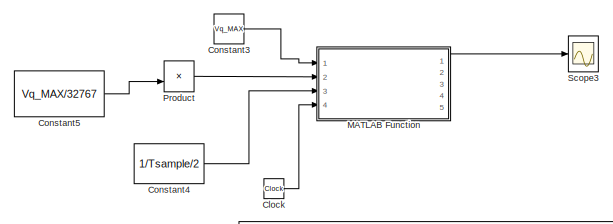
[diagram: root canvas - part 1/5, top left region]
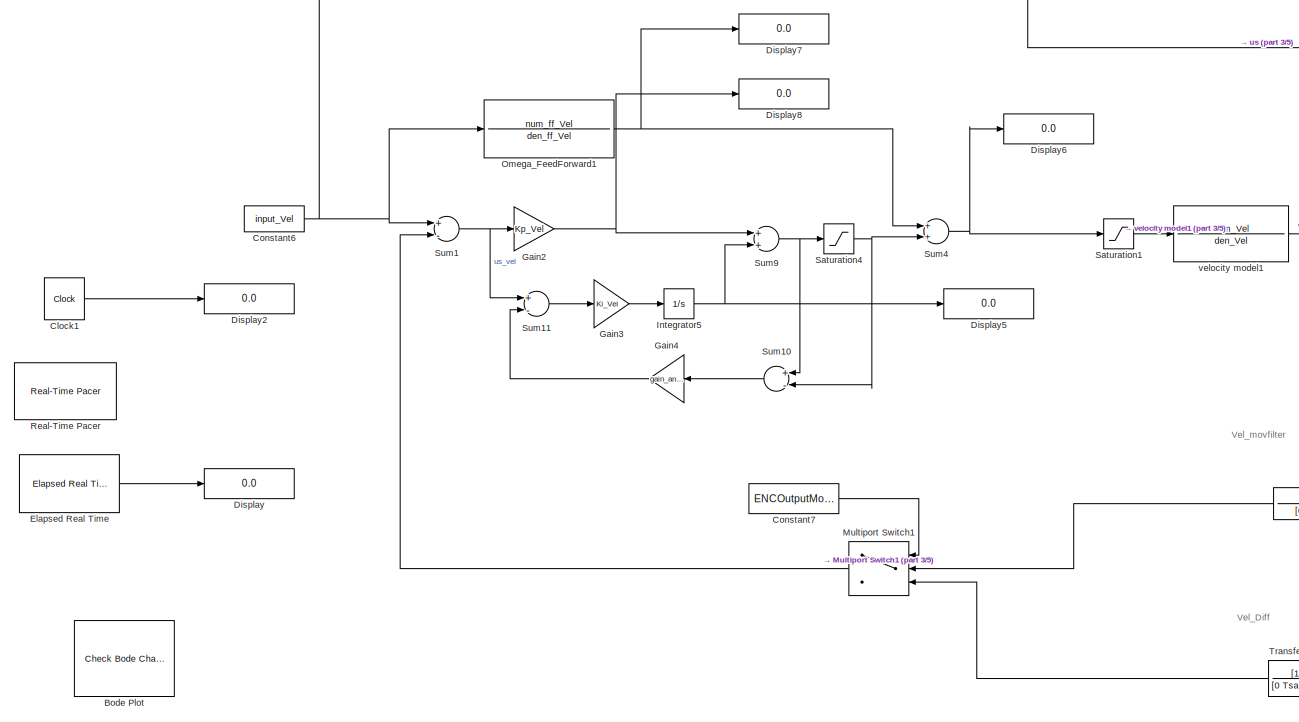
[diagram: root canvas - part 2/5, top left region]
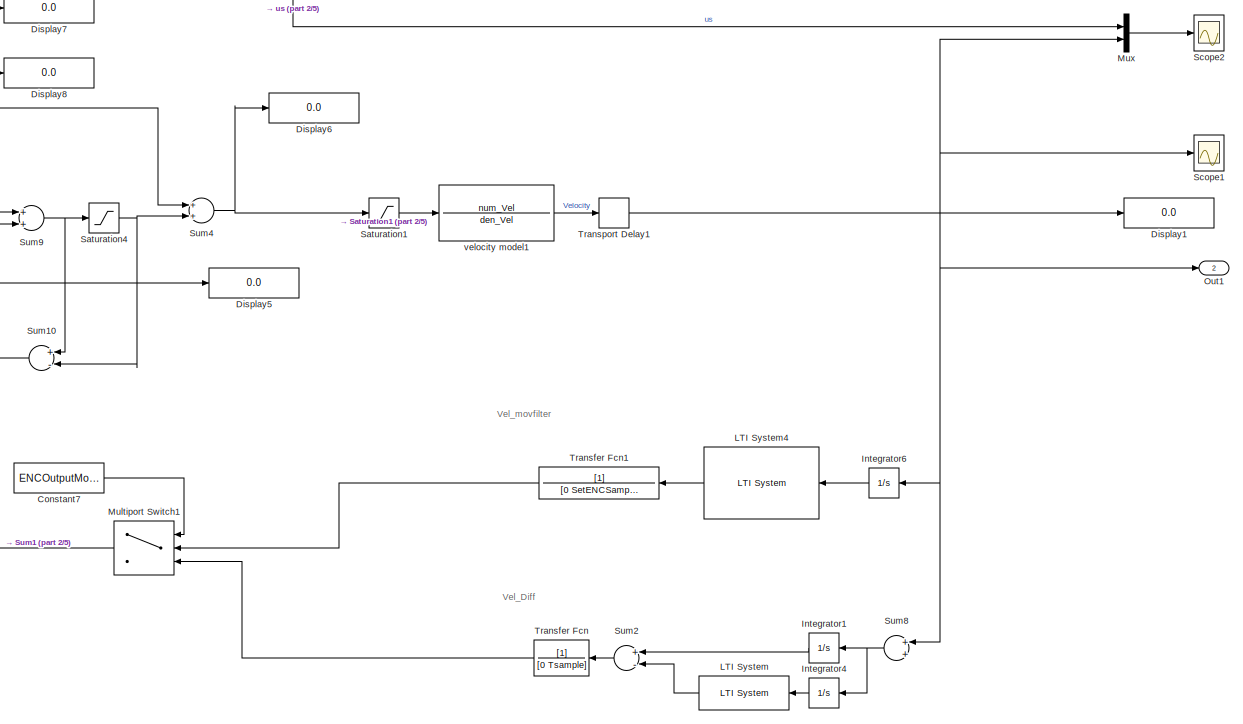
[diagram: root canvas - part 3/5, top right region]
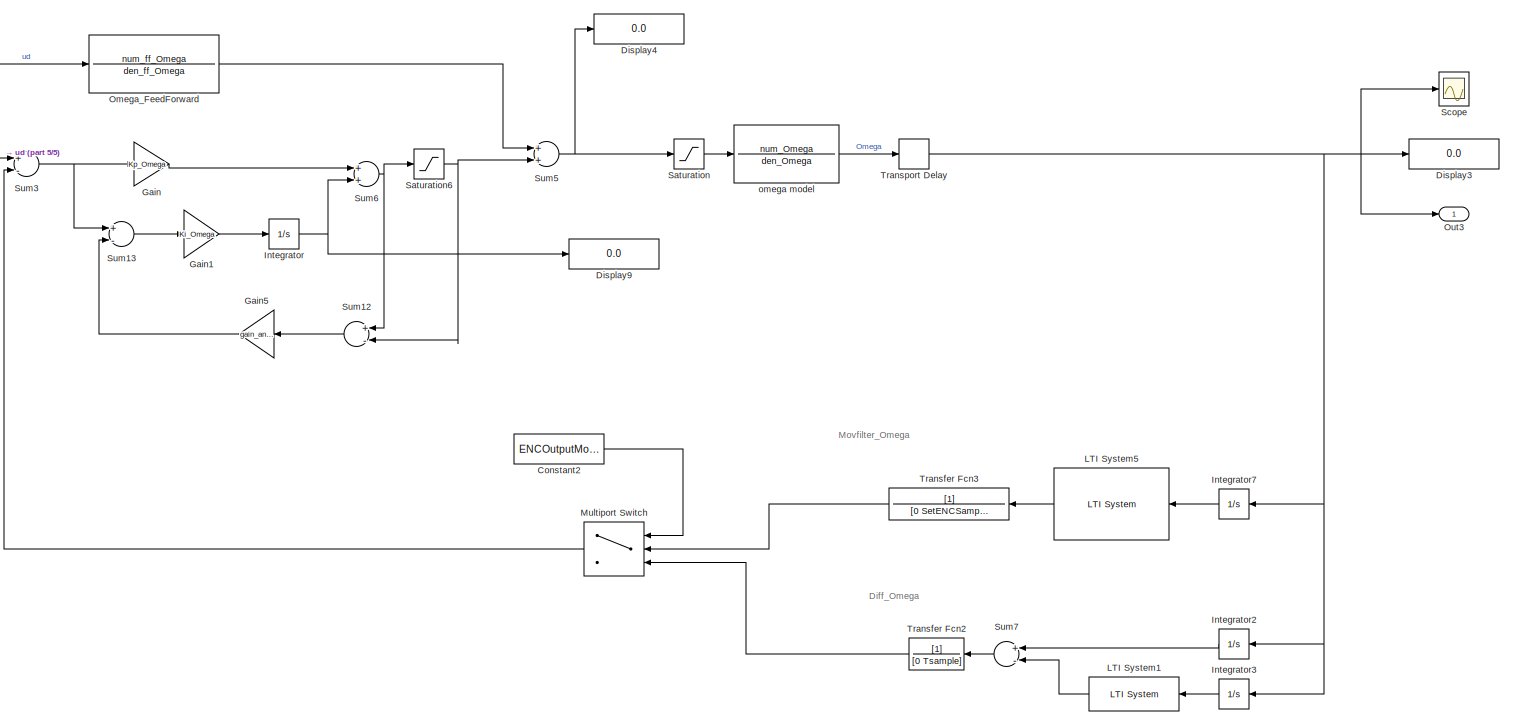
[diagram: root canvas - part 4/5, full width, bottom band]
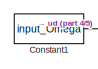
[diagram: root canvas - part 5/5, bottom left region]
MODEL slx_cc8e525f96bc
KIND model
CONFIG AbsTol = auto
CONFIG FixedStep = 0.04
CONFIG MaxStep = auto
CONFIG MinStep = auto
CONFIG RelTol = 1e-3
CONFIG SampleTimeConstraint = Unconstrained
CONFIG Solver = FixedStepAuto
CONFIG SolverMode = Auto
CONFIG SolverName = FixedStepAuto
CONFIG StartTime = 0.0
CONFIG StopTime = simulation_time
BLOCK [Reference] Bode Plot  REF=slctrlblks/Model Verification/Check Bode 
Characteristics
  InstantiateOnLoad = on
  Ports = []
  SourceBlock = slctrlblks/Model Verification/Check Bode \nCharacteristics
  SourceType = Checks_Bode
BLOCK [Clock] Clock
BLOCK [Clock] Clock1
  Decimation = 1
  DisplayTime = on
BLOCK [Constant] Constant1
  SampleTime = -1
  Value = input_Omega
BLOCK [Constant] Constant2
  SampleTime = -1
  Value = ENCOutputMode
BLOCK [Constant] Constant3
  SampleTime = -1
  Value = Vq_MAX
BLOCK [Constant] Constant4
  SampleTime = -1
  Value = 1/Tsample/2
BLOCK [Constant] Constant5
  SampleTime = -1
  Value = Vq_MAX/32767
BLOCK [Constant] Constant6
  SampleTime = -1
  Value = input_Vel
BLOCK [Constant] Constant7
  SampleTime = -1
  Value = ENCOutputMode
BLOCK [Display] Display
  Decimation = 1
  Ports = [1]
BLOCK [Display] Display1
  Decimation = 1
  Ports = [1]
BLOCK [Display] Display2
  Decimation = 1
  Ports = [1]
BLOCK [Display] Display3
  Decimation = 1
  Ports = [1]
BLOCK [Display] Display4
  Decimation = 1
  Ports = [1]
BLOCK [Display] Display5
  Decimation = 1
  Ports = [1]
BLOCK [Display] Display6
  Decimation = 1
  Ports = [1]
BLOCK [Display] Display7
  Decimation = 1
  Ports = [1]
BLOCK [Display] Display8
  Decimation = 1
  Ports = [1]
BLOCK [Display] Display9
  Decimation = 1
  Ports = [1]
BLOCK [Reference] Elapsed Real Time  REF=realtime_pacer_lib/Elapsed Real Time
  Ports = [0, 1]
  SourceBlock = realtime_pacer_lib/Elapsed Real Time
  SourceType = RealTime_Elapsed
BLOCK [Gain] Gain
  Gain = Kp_Omega
  OutDataTypeStr = Inherit: Inherit via internal rule
  ParamDataTypeStr = Inherit: Inherit via internal rule
  SaturateOnIntegerOverflow = off
BLOCK [Gain] Gain1
  Gain = Ki_Omega
  OutDataTypeStr = Inherit: Inherit via internal rule
  ParamDataTypeStr = Inherit: Inherit via internal rule
  SaturateOnIntegerOverflow = off
BLOCK [Gain] Gain2
  Gain = Kp_Vel
  OutDataTypeStr = Inherit: Inherit via internal rule
  ParamDataTypeStr = Inherit: Inherit via internal rule
  SaturateOnIntegerOverflow = off
BLOCK [Gain] Gain3
  Gain = Ki_Vel
  OutDataTypeStr = Inherit: Inherit via internal rule
  ParamDataTypeStr = Inherit: Inherit via internal rule
  SaturateOnIntegerOverflow = off
BLOCK [Gain] Gain4
  Gain = gain_anti_windup_Vel
  OutDataTypeStr = Inherit: Inherit via internal rule
  ParamDataTypeStr = Inherit: Inherit via internal rule
  SaturateOnIntegerOverflow = off
BLOCK [Gain] Gain5
  Gain = gain_anti_windup_Omega
  OutDataTypeStr = Inherit: Inherit via internal rule
  ParamDataTypeStr = Inherit: Inherit via internal rule
  SaturateOnIntegerOverflow = off
BLOCK [Integrator] Integrator
  Ports = [1, 1]
BLOCK [Integrator] Integrator1
  Ports = [1, 1]
BLOCK [Integrator] Integrator2
  Ports = [1, 1]
BLOCK [Integrator] Integrator3
  Ports = [1, 1]
BLOCK [Integrator] Integrator4
  Ports = [1, 1]
BLOCK [Integrator] Integrator5
  Ports = [1, 1]
BLOCK [Integrator] Integrator6
  Ports = [1, 1]
BLOCK [Integrator] Integrator7
  Ports = [1, 1]
BLOCK [Reference] LTI System  REF=cstblocks/LTI System
  Ports = [1, 1]
  SourceBlock = cstblocks/LTI System
  SourceType = LTI Block
BLOCK [Reference] LTI System1  REF=cstblocks/LTI System
  Ports = [1, 1]
  SourceBlock = cstblocks/LTI System
  SourceType = LTI Block
BLOCK [Reference] LTI System4  REF=cstblocks/LTI System
  Ports = [1, 1]
  SourceBlock = cstblocks/LTI System
  SourceType = LTI Block
BLOCK [Reference] LTI System5  REF=cstblocks/LTI System
  Ports = [1, 1]
  SourceBlock = cstblocks/LTI System
  SourceType = LTI Block
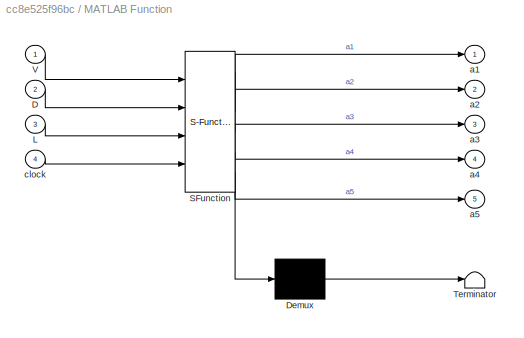
BLOCK [SubSystem] MATLAB Function
  ErrorFcn = Stateflow.Translate.translate
  PermitHierarchicalResolution = ExplicitOnly
  Ports = [4, 5]
  RequestExecContextInheritance = off
  SFBlockType = MATLAB Function
  TreatAsAtomicUnit = on
  Variant = off
BLOCK [Demux] MATLAB Function/ Demux 
  Outputs = 1
  Ports = [1, 1]
BLOCK [S-Function] MATLAB Function/ SFunction 
  EnableBusSupport = on
  FunctionName = sf_sfun
  PortCounts = [4 6]
  Ports = [4, 6]
  SFunctionDeploymentMode = off
  Tag = Stateflow S-Function andbot1dot2_voltage_loop_frictioncompensation 2
BLOCK [Terminator] MATLAB Function/ Terminator 
BLOCK [Inport] MATLAB Function/D
  IconDisplay = Port number
  Port = 2
BLOCK [Inport] MATLAB Function/L
  IconDisplay = Port number
  Port = 3
BLOCK [Inport] MATLAB Function/V
  IconDisplay = Port number
BLOCK [Outport] MATLAB Function/a1
  IconDisplay = Port number
BLOCK [Outport] MATLAB Function/a2
  IconDisplay = Port number
  Port = 2
BLOCK [Outport] MATLAB Function/a3
  IconDisplay = Port number
  Port = 3
BLOCK [Outport] MATLAB Function/a4
  IconDisplay = Port number
  Port = 4
BLOCK [Outport] MATLAB Function/a5
  IconDisplay = Port number
  Port = 5
BLOCK [Inport] MATLAB Function/clock
  IconDisplay = Port number
  Port = 4
BLOCK [MultiPortSwitch] Multiport Switch
  InputSameDT = off
  Inputs = 2
  Ports = [3, 1]
  SaturateOnIntegerOverflow = off
BLOCK [MultiPortSwitch] Multiport Switch1
  InputSameDT = off
  Inputs = 2
  Ports = [3, 1]
  SaturateOnIntegerOverflow = off
BLOCK [Mux] Mux
  DisplayOption = bar
  Inputs = 2
  Ports = [2, 1]
BLOCK [TransferFcn] Omega_FeedForward
  Denominator = den_ff_Omega
  Numerator = num_ff_Omega
BLOCK [TransferFcn] Omega_FeedForward1
  Denominator = den_ff_Vel
  Numerator = num_ff_Vel
BLOCK [Outport] Out1
  IconDisplay = Port number
  Port = 2
BLOCK [Outport] Out3
  IconDisplay = Port number
BLOCK [Product] Product
  InputSameDT = off
  OutDataTypeStr = Inherit: Inherit via internal rule
  Ports = [2, 1]
  RndMeth = Floor
  SaturateOnIntegerOverflow = off
BLOCK [Reference] Real-Time Pacer  REF=realtime_pacer_lib/Real-Time Pacer
  Ports = []
  SourceBlock = realtime_pacer_lib/Real-Time Pacer
  SourceType = RealTime_Pacer
BLOCK [Saturate] Saturation
  InputPortMap = u0
  LowerLimit = Umin_Volt
  Ports = [1, 1]
  UpperLimit = Umax_Volt
BLOCK [Saturate] Saturation1
  InputPortMap = u0
  LowerLimit = Umin_Volt
  Ports = [1, 1]
  UpperLimit = Umax_Volt
BLOCK [Saturate] Saturation4
  InputPortMap = u0
  LowerLimit = Umin_Volt
  Ports = [1, 1]
  UpperLimit = Umax_Volt
BLOCK [Saturate] Saturation6
  InputPortMap = u0
  LowerLimit = Umin_Volt
  Ports = [1, 1]
  UpperLimit = Umax_Volt
BLOCK [Scope] Scope
  Ports = [1]
  ScopeSpecificationString = Simulink.scopes.TimeScopeBlockCfg('CurrentConfiguration', extmgr.ConfigurationSet(extmgr.Configuration('Core','General UI',true),extmgr.Configuration('Core','Source UI',true),extmgr.Configuration('Sources','WiredSimulink',true,'DataLogging',true,'DataLoggingVariableName','ScopeData_Omega','DataLoggingSaveFormat','StructureWithTime'),extmgr.Configuration('Visuals','Time Domain',true,'SerializedDisp...<+1539ch>
BLOCK [Scope] Scope1
  Ports = [1]
  ScopeSpecificationString = Simulink.scopes.TimeScopeBlockCfg('CurrentConfiguration', extmgr.ConfigurationSet(extmgr.Configuration('Core','General UI',true),extmgr.Configuration('Core','Source UI',true),extmgr.Configuration('Sources','WiredSimulink',true,'DataLoggingVariableName','ScopeData_Vel','DataLogging',true,'DataLoggingSaveFormat','StructureWithTime'),extmgr.Configuration('Visuals','Time Domain',true,'SerializedDispla...<+1510ch>
BLOCK [Scope] Scope2
  Ports = [1]
  ScopeSpecificationString = Simulink.scopes.TimeScopeBlockCfg('CurrentConfiguration', extmgr.ConfigurationSet(extmgr.Configuration('Core','General UI',true),extmgr.Configuration('Core','Source UI',true),extmgr.Configuration('Sources','WiredSimulink',true,'DataLoggingVariableName','ScopeData1','DataLogging',true,'DataLoggingSaveFormat','StructureWithTime'),extmgr.Configuration('Visuals','Time Domain',true,'SerializedDisplays'...<+1511ch>
BLOCK [Scope] Scope3
  Ports = [1]
  ScopeSpecificationString = Simulink.scopes.TimeScopeBlockCfg('CurrentConfiguration', extmgr.ConfigurationSet(extmgr.Configuration('Core','General UI',true),extmgr.Configuration('Core','Source UI',true),extmgr.Configuration('Sources','WiredSimulink',true,'DataLoggingVariableName','ScopeData1'),extmgr.Configuration('Visuals','Time Domain',true,'SerializedDisplays',{struct('MinYLimReal','-164.82867','MaxYLimReal','7.94459','YL...<+1511ch>
BLOCK [Sum] Sum1
  InputSameDT = off
  Inputs = +-
  OutDataTypeStr = Inherit: Inherit via internal rule
  Ports = [2, 1]
  SaturateOnIntegerOverflow = off
BLOCK [Sum] Sum10
  InputSameDT = off
  Inputs = +-
  OutDataTypeStr = Inherit: Inherit via internal rule
  Ports = [2, 1]
  SaturateOnIntegerOverflow = off
BLOCK [Sum] Sum11
  InputSameDT = off
  Inputs = +-
  OutDataTypeStr = Inherit: Inherit via internal rule
  Ports = [2, 1]
  SaturateOnIntegerOverflow = off
BLOCK [Sum] Sum12
  InputSameDT = off
  Inputs = +-
  OutDataTypeStr = Inherit: Inherit via internal rule
  Ports = [2, 1]
  SaturateOnIntegerOverflow = off
BLOCK [Sum] Sum13
  InputSameDT = off
  Inputs = +-
  OutDataTypeStr = Inherit: Inherit via internal rule
  Ports = [2, 1]
  SaturateOnIntegerOverflow = off
BLOCK [Sum] Sum2
  InputSameDT = off
  Inputs = +-
  OutDataTypeStr = Inherit: Inherit via internal rule
  Ports = [2, 1]
  SaturateOnIntegerOverflow = off
BLOCK [Sum] Sum3
  InputSameDT = off
  Inputs = +-
  OutDataTypeStr = Inherit: Inherit via internal rule
  Ports = [2, 1]
  SaturateOnIntegerOverflow = off
BLOCK [Sum] Sum4
  InputSameDT = off
  OutDataTypeStr = Inherit: Inherit via internal rule
  Ports = [2, 1]
  SaturateOnIntegerOverflow = off
BLOCK [Sum] Sum5
  InputSameDT = off
  OutDataTypeStr = Inherit: Inherit via internal rule
  Ports = [2, 1]
  SaturateOnIntegerOverflow = off
BLOCK [Sum] Sum6
  InputSameDT = off
  OutDataTypeStr = Inherit: Inherit via internal rule
  Ports = [2, 1]
  SaturateOnIntegerOverflow = off
BLOCK [Sum] Sum7
  InputSameDT = off
  Inputs = +-
  OutDataTypeStr = Inherit: Inherit via internal rule
  Ports = [2, 1]
  SaturateOnIntegerOverflow = off
BLOCK [Sum] Sum8
  InputSameDT = off
  OutDataTypeStr = Inherit: Inherit via internal rule
  Ports = [2, 1]
  SaturateOnIntegerOverflow = off
BLOCK [Sum] Sum9
  InputSameDT = off
  OutDataTypeStr = Inherit: Inherit via internal rule
  Ports = [2, 1]
  SaturateOnIntegerOverflow = off
BLOCK [TransferFcn] Transfer Fcn
  Denominator = [0 Tsample]
BLOCK [TransferFcn] Transfer Fcn1
  Denominator = [0 SetENCSample*Tsample]
BLOCK [TransferFcn] Transfer Fcn2
  Denominator = [0 Tsample]
BLOCK [TransferFcn] Transfer Fcn3
  Denominator = [0 SetENCSample*Tsample]
BLOCK [TransportDelay] Transport Delay
  DelayTime = PracLoopDelay
  Ports = [1, 1]
BLOCK [TransportDelay] Transport Delay1
  DelayTime = PracLoopDelay
  Ports = [1, 1]
BLOCK [TransferFcn] omega model
  Denominator = den_Omega
  Numerator = num_Omega
BLOCK [TransferFcn] velocity model1
  Denominator = den_Vel
  Numerator = num_Vel
ANNOTATION (root): Diff_Omega
ANNOTATION (root): Movfilter_Omega
ANNOTATION (root): Vel_Diff
ANNOTATION (root): Vel_movfilter
LINE Clock1:1 -> Display2:1
LINE Clock:1 -> MATLAB Function:4
NET Constant1:1 -> Omega_FeedForward:1, Sum3:1
LINE Constant2:1 -> Multiport Switch:1
LINE Constant3:1 -> MATLAB Function:1
LINE Constant4:1 -> MATLAB Function:3
LINE Constant5:1 -> Product:2
NET Constant6:1 -> Mux:1, Omega_FeedForward1:1, Sum1:1
LINE Constant7:1 -> Multiport Switch1:1
LINE Elapsed Real Time:1 -> Display:1
LINE Gain1:1 -> Integrator:1
NET Gain2:1 -> Display8:1, Sum9:1
LINE Gain3:1 -> Integrator5:1
LINE Gain4:1 -> Sum11:2
LINE Gain5:1 -> Sum13:2
LINE Gain:1 -> Sum6:1
LINE Integrator1:1 -> Sum2:1
LINE Integrator2:1 -> Sum7:1
LINE Integrator3:1 -> LTI System1:1
LINE Integrator4:1 -> LTI System:1
NET Integrator5:1 -> Display5:1, Sum9:2
LINE Integrator6:1 -> LTI System4:1
LINE Integrator7:1 -> LTI System5:1
NET Integrator:1 -> Display9:1, Sum6:2
LINE LTI System1:1 -> Sum7:2
LINE LTI System4:1 -> Transfer Fcn1:1
LINE LTI System5:1 -> Transfer Fcn3:1
LINE LTI System:1 -> Sum2:2
LINE MATLAB Function:1 -> Scope3:1
LINE Multiport Switch1:1 -> Sum1:2
LINE Multiport Switch:1 -> Sum3:2
LINE Mux:1 -> Scope2:1
NET Omega_FeedForward1:1 -> Display7:1, Sum4:1
LINE Omega_FeedForward:1 -> Sum5:1
LINE Product:1 -> MATLAB Function:2
LINE Saturation1:1 -> velocity model1:1
NET Saturation4:1 -> Sum10:2, Sum4:2
NET Saturation6:1 -> Sum12:2, Sum5:2
LINE Saturation:1 -> omega model:1
LINE Sum10:1 -> Gain4:1
LINE Sum11:1 -> Gain3:1
LINE Sum12:1 -> Gain5:1
LINE Sum13:1 -> Gain1:1
NET Sum1:1 -> Gain2:1, Sum11:1
LINE Sum2:1 -> Transfer Fcn:1
NET Sum3:1 -> Gain:1, Sum13:1
NET Sum4:1 -> Display6:1, Saturation1:1
NET Sum5:1 -> Display4:1, Saturation:1
NET Sum6:1 -> Saturation6:1, Sum12:1
LINE Sum7:1 -> Transfer Fcn2:1
NET Sum8:1 -> Integrator1:1, Integrator4:1
NET Sum9:1 -> Saturation4:1, Sum10:1
LINE Transfer Fcn1:1 -> Multiport Switch1:2
LINE Transfer Fcn2:1 -> Multiport Switch:3
LINE Transfer Fcn3:1 -> Multiport Switch:2
LINE Transfer Fcn:1 -> Multiport Switch1:3
NET Transport Delay1:1 -> Display1:1, Integrator6:1, Mux:2, Out1:1, Scope1:1, Sum8:1
NET Transport Delay:1 -> Display3:1, Integrator2:1, Integrator3:1, Integrator7:1, Out3:1, Scope:1
LINE omega model:1 -> Transport Delay:1
LINE velocity model1:1 -> Transport Delay1:1
note: NET lines group one-source signal fan-out (src -> all destinations, sorted); 1:1 wires keep LINE
CHART MATLAB Function states=1 transitions=1
  STATE_LABEL 'eML_blk_kernel()'
  STATE_LABEL 'SCRIPT:\nfunction [a1,a2, a3, a4, a5]  = PWM_noise_sine(V, D, L, clock)\n%#codegen\na = 1:5;\n\nfor n = 1:5\n    a(n) = 2/ n * V / pi * sin(clock*pi*D);\nend\na1 = a(1);\na2 = a(2);\na3 = a(3);\na4 = a(4);\na5 = a(5);\n\n'
